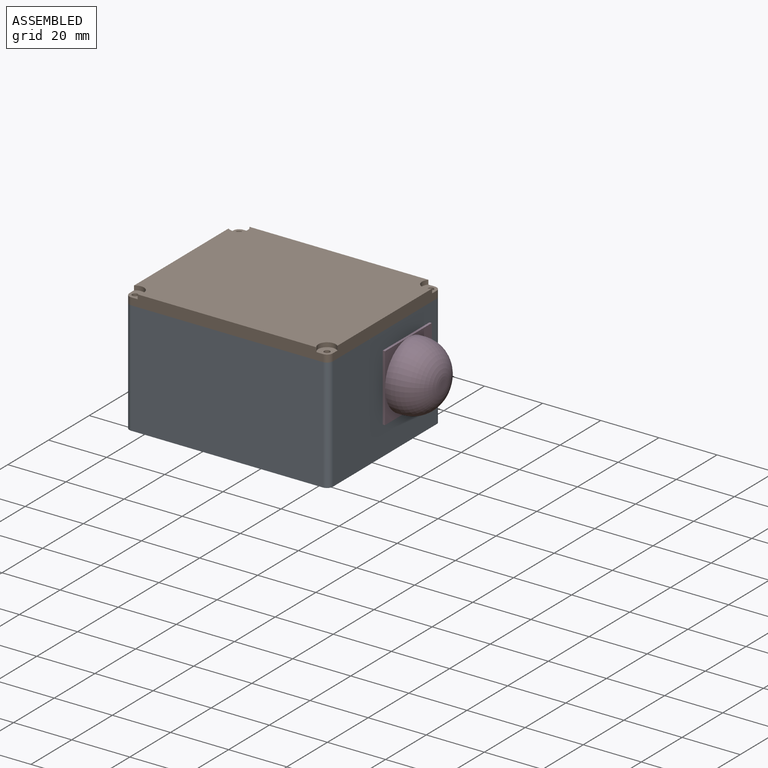
[diagram: assembled view]
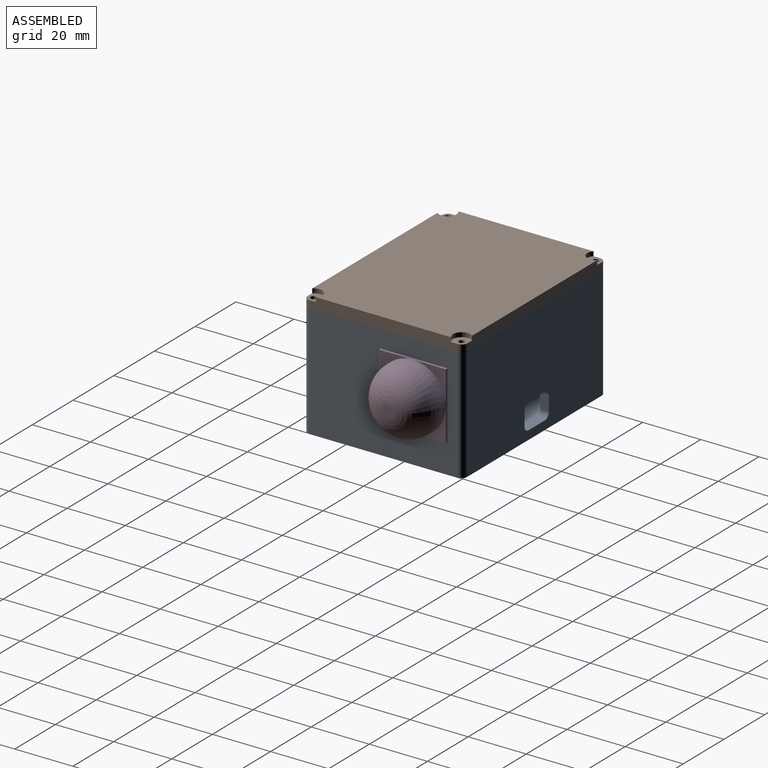
[diagram: assembled view, second angle]
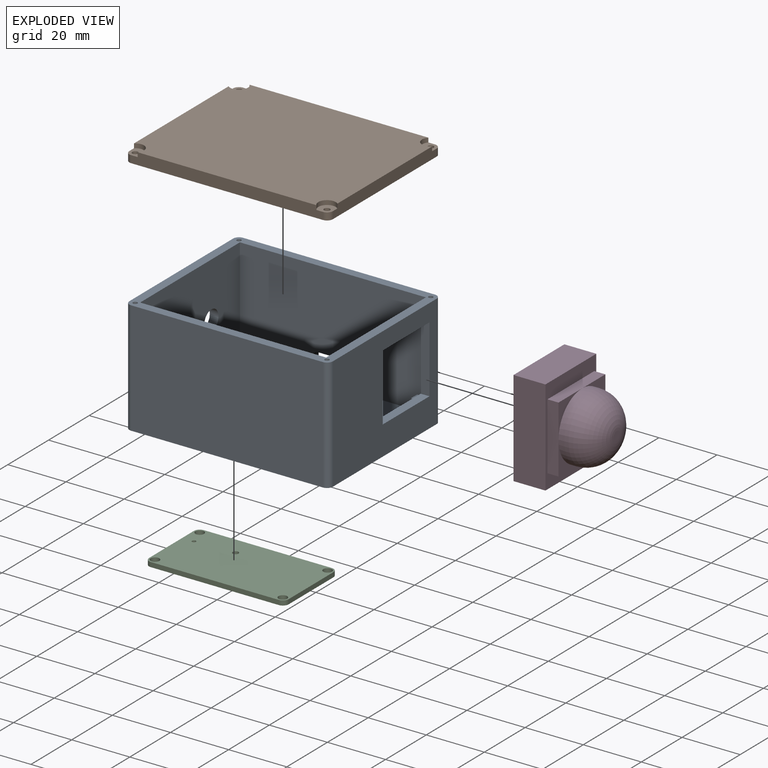
[diagram: exploded view]
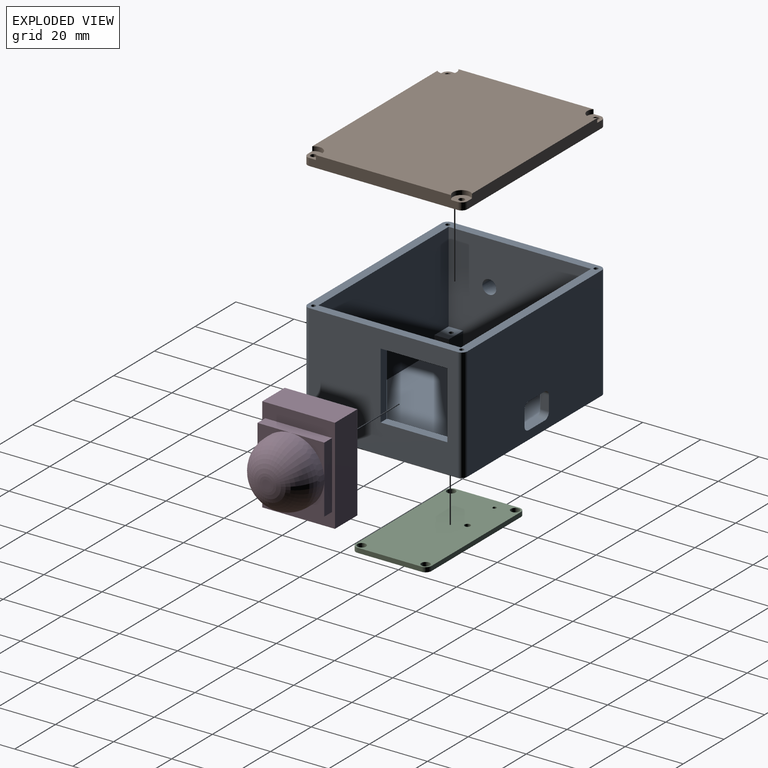
[diagram: exploded view, second angle]
ASSEMBLY  parts=4 mates=3
PART A: 56 faces, bbox 73x55x39 mm
  f0: plane 49x36mm, normal (-1,0,0), area 1190mm2, adj f4,f5,f6,f7,f12,f13,f14,f16
  f1: plane 51x39mm, normal (1,0,0), area 1460mm2, adj f7,f10,f38,f39,f48,f49,f50,f51
  f2: plane 66x39mm, normal (0,1,0), area 2469.4mm2, adj f6,f7,f10,f29,f30,f31,f32,f33
  f3: plane 49x36mm, normal (1,0,0), area 1657.4mm2, adj f4,f5,f6,f7,f17,f19,f20,f22
  f4: plane 64x36mm, normal (0,-1,0), area 2149.4mm2, adj f0,f3,f6,f7,f11,f13,f21,f22
  f5: plane 64x36mm, normal (0,1,0), area 2239mm2, adj f0,f3,f6,f7,f15,f16,f18,f19
  f6: plane 64x52mm, normal (0,0,1), area 3045mm2, adj f0,f2,f3,f4,f5,f11,f12,f14
  f7: plane 70x55mm, normal (0,0,1), area 703.5mm2, adj f0,f1,f2,f3,f4,f5,f8,f9
  f8: plane 51x39mm, normal (-1,0,0), area 1912mm2, adj f7,f10,f36,f37,f52,f53
  f9: plane 66x39mm, normal (0,-1,0), area 2574mm2, adj f7,f10,f37,f38
  f10: plane 70x55mm, normal (0,0,-1), area 3846.6mm2, adj f1,f2,f8,f9,f36,f37,f38,f39
  f11: plane 5x3mm, normal (-1,0,0), area 15mm2, adj f4,f6,f12,f13
  f12: plane 5x3mm, normal (0,-1,0), area 15mm2, adj f0,f6,f11,f13
  f13: plane 3x3mm, normal (0,0,1), area 9mm2, adj f0,f4,f11,f12
  f14: plane 6x5mm, normal (0,1,0), area 30mm2, adj f0,f6,f15,f16
  f15: plane 6x5mm, normal (-1,0,0), area 30mm2, adj f5,f6,f14,f16
  f16: plane 6x6mm, normal (0,0,1), area 34.2mm2, adj f0,f5,f14,f15,f27
  f17: plane 7x5mm, normal (0,1,0), area 35mm2, adj f3,f6,f18,f19
  f18: plane 5x5mm, normal (1,0,0), area 25mm2, adj f5,f6,f17,f19
  f19: plane 7x5mm, normal (0,0,1), area 33.2mm2, adj f3,f5,f17,f18,f25
  f20: plane 7x5mm, normal (0,-1,0), area 35mm2, adj f3,f6,f21,f22
  f21: plane 5x5mm, normal (1,0,0), area 25mm2, adj f4,f6,f20,f22
  f22: plane 7x5mm, normal (0,0,1), area 33.2mm2, adj f3,f4,f20,f21,f23
  f23: cylinder r=0.75mm len=5mm, axis (0,0,1), area 23.6mm2, adj f22,f24
  f24: plane 1.5x1.5mm, normal (0,0,1), area 1.8mm2, adj f23
  f25: cylinder r=0.75mm len=5mm, axis (0,0,1), area 23.6mm2, adj f19,f26
  f26: plane 1.5x1.5mm, normal (0,0,1), area 1.8mm2, adj f25
  f27: cylinder r=0.75mm len=5mm, axis (0,0,1), area 23.6mm2, adj f16,f28
  f28: plane 1.5x1.5mm, normal (0,0,1), area 1.8mm2, adj f27
  f29: plane 5x3mm, normal (1,0,0), area 15mm2, adj f2,f4,f32,f35
  f30: plane 8x3mm, normal (0,0,-1), area 24mm2, adj f2,f4,f32,f33
  f31: plane 5x3mm, normal (-1,0,0), area 15mm2, adj f2,f4,f33,f34
  f32: cylinder r=2mm len=3mm, axis (0,1,0), area 9.4mm2, adj f2,f4,f29,f30
  f33: cylinder r=2mm len=3mm, axis (0,-1,0), area 9.4mm2, adj f2,f4,f30,f31
  f34: cylinder r=2mm len=3mm, axis (0,1,0), area 9.4mm2, adj f2,f4,f6,f31
  f35: cylinder r=2mm len=3mm, axis (0,-1,0), area 9.4mm2, adj f2,f4,f6,f29
  f36: cylinder r=2mm len=39mm, axis (0,0,1), area 122.5mm2, adj f2,f7,f8,f10
  f37: cylinder r=2mm len=39mm, axis (0,0,-1), area 122.5mm2, adj f7,f8,f9,f10
  f38: cylinder r=2mm len=39mm, axis (0,0,1), area 122.5mm2, adj f1,f7,f9,f10
  f39: cylinder r=2mm len=39mm, axis (0,0,-1), area 122.5mm2, adj f1,f2,f7,f10
  f40: cylinder r=0.75mm len=10mm, axis (0,0,1), area 47.1mm2, adj f7,f41
  f41: plane 1.5x1.5mm, normal (0,0,1), area 1.8mm2, adj f40
  f42: cylinder r=0.75mm len=10mm, axis (0,0,1), area 47.1mm2, adj f7,f43
  f43: plane 1.5x1.5mm, normal (0,0,1), area 1.8mm2, adj f42
  f44: cylinder r=0.75mm len=10mm, axis (0,0,1), area 47.1mm2, adj f7,f45
  f45: plane 1.5x1.5mm, normal (0,0,1), area 1.8mm2, adj f44
  f46: cylinder r=0.75mm len=10mm, axis (0,0,1), area 47.1mm2, adj f7,f47
  f47: plane 1.5x1.5mm, normal (0,0,1), area 1.8mm2, adj f46
  f48: plane 23x3mm, normal (0,-1,0), area 69mm2, adj f0,f1,f49,f51
  f49: plane 23x3mm, normal (0,0,-1), area 69mm2, adj f0,f1,f48,f50
  f50: plane 23x3mm, normal (0,1,0), area 69mm2, adj f0,f1,f49,f51
  f51: plane 23x3mm, normal (0,0,1), area 69mm2, adj f0,f1,f48,f50
  f52: cylinder r=3.5mm len=7mm, axis (-1,0,0), area 66mm2, adj f3,f8
  f53: cylinder r=3.5mm len=7mm, axis (1,0,0), area 66mm2, adj f8,f54
  f54: plane 7x7mm, normal (-1,0,0), area 20.4mm2, adj f53,f55
  f55: cylinder r=2.4mm len=6mm, axis (-1,0,0), area 90.5mm2, adj f3,f54
PART B: 22 faces, bbox 70x55x4 mm
  f0: cylinder r=2mm len=2.5mm, axis (0,0,1), area 7.9mm2, adj f4,f5,f9,f17
  f1: cylinder r=2mm len=2.5mm, axis (0,0,-1), area 7.9mm2, adj f5,f6,f9,f15
  f2: cylinder r=2mm len=2.5mm, axis (0,0,1), area 7.9mm2, adj f6,f7,f9,f13
  f3: cylinder r=2mm len=2.5mm, axis (0,0,-1), area 7.9mm2, adj f4,f7,f9,f11
  f4: plane 66x4mm, normal (0,1,0), area 257.3mm2, adj f0,f3,f8,f9,f10,f11,f16,f17
  f5: plane 51x4mm, normal (-1,0,0), area 197.3mm2, adj f0,f1,f8,f9,f14,f15,f16,f17
  f6: plane 66x4mm, normal (0,-1,0), area 257.3mm2, adj f1,f2,f8,f9,f12,f13,f14,f15
  f7: plane 51x4mm, normal (1,0,0), area 197.3mm2, adj f2,f3,f8,f9,f10,f11,f12,f13
  f8: plane 70x55mm, normal (0,0,1), area 3761.6mm2, adj f4,f5,f6,f7,f10,f12,f14,f16
  f9: plane 70x55mm, normal (0,0,-1), area 3834mm2, adj f0,f1,f2,f3,f4,f5,f6,f7
  f10: cylinder r=3mm len=5mm, axis (0,0,1), area 13.6mm2, adj f4,f7,f8,f11
  f11: plane 5x5mm, normal (0,0,1), area 18.1mm2, adj f3,f4,f7,f10,f21
  f12: cylinder r=3mm len=5mm, axis (0,0,1), area 13.6mm2, adj f6,f7,f8,f13
  f13: plane 5x5mm, normal (0,0,1), area 18.1mm2, adj f2,f6,f7,f12,f20
  f14: cylinder r=3mm len=5mm, axis (0,0,1), area 13.6mm2, adj f5,f6,f8,f15
  f15: plane 5x5mm, normal (0,0,1), area 18.1mm2, adj f1,f5,f6,f14,f19
  f16: cylinder r=3mm len=5mm, axis (0,0,1), area 13.6mm2, adj f4,f5,f8,f17
  f17: plane 5x5mm, normal (0,0,1), area 18.1mm2, adj f0,f4,f5,f16,f18
  f18: cylinder r=1mm len=2.5mm, axis (0,0,1), area 15.7mm2, adj f9,f17
  f19: cylinder r=1mm len=2.5mm, axis (0,0,1), area 15.7mm2, adj f9,f15
  f20: cylinder r=1mm len=2.5mm, axis (0,0,1), area 15.7mm2, adj f9,f13
  f21: cylinder r=1mm len=2.5mm, axis (0,0,1), area 15.7mm2, adj f9,f11
PART C: 16 faces, bbox 48x26x1.6 mm
  f0: plane 44x1.6mm, normal (0,1,0), area 70.4mm2, adj f4,f5,f12,f15
  f1: plane 22x1.6mm, normal (-1,0,0), area 35.2mm2, adj f4,f5,f12,f13
  f2: plane 44x1.6mm, normal (0,-1,0), area 70.4mm2, adj f4,f5,f13,f14
  f3: plane 22x1.6mm, normal (1,0,0), area 35.2mm2, adj f4,f5,f14,f15
  f4: plane 48x26mm, normal (0,0,1), area 1211.8mm2, adj f0,f1,f2,f3,f6,f7,f8,f9
  f5: plane 48x26mm, normal (0,0,-1), area 1211.8mm2, adj f0,f1,f2,f3,f6,f7,f8,f9
  f6: cylinder r=1.5mm len=3mm, axis (0,0,1), area 15.1mm2, adj f4,f5
  f7: cylinder r=1mm len=2mm, axis (0,0,1), area 10.1mm2, adj f4,f5
  f8: cylinder r=1.5mm len=3mm, axis (0,0,1), area 15.1mm2, adj f4,f5
  f9: cylinder r=1.5mm len=3mm, axis (0,0,1), area 15.1mm2, adj f4,f5
  f10: cylinder r=1.5mm len=3mm, axis (0,0,1), area 15.1mm2, adj f4,f5
  f11: cylinder r=0.65mm len=1.6mm, axis (0,0,1), area 6.5mm2, adj f4,f5
  f12: cylinder r=2mm len=2mm, axis (0,0,1), area 5mm2, adj f0,f1,f4,f5
  f13: cylinder r=2mm len=2mm, axis (0,0,-1), area 5mm2, adj f1,f2,f4,f5
  f14: cylinder r=2mm len=2mm, axis (0,0,1), area 5mm2, adj f2,f3,f4,f5
  f15: cylinder r=2mm len=2mm, axis (0,0,-1), area 5mm2, adj f0,f3,f4,f5
PART D: 17 faces, bbox 26.8x33x25 mm
  f0: plane 11.5x11.5mm, normal (1,0,0), area 28.4mm2, adj f11,f12,f14
  f1: plane 11.5x11.5mm, normal (1,0,0), area 28.4mm2, adj f9,f12,f14
  f2: plane 11.5x11.5mm, normal (1,0,0), area 28.4mm2, adj f9,f10,f14
  f3: plane 33x25mm, normal (1,0,0), area 296mm2, adj f4,f5,f6,f7,f9,f10,f11,f12
  f4: plane 25x11mm, normal (0,1,0), area 275mm2, adj f3,f5,f7,f8
  f5: plane 33x11mm, normal (0,0,1), area 363mm2, adj f3,f4,f6,f8
  f6: plane 25x11mm, normal (0,-1,0), area 275mm2, adj f3,f5,f7,f8
  f7: plane 33x11mm, normal (0,0,-1), area 363mm2, adj f3,f4,f6,f8
  f8: plane 33x25mm, normal (-1,0,0), area 825mm2, adj f4,f5,f6,f7
  f9: plane 23x3.8mm, normal (0,0,1), area 87.4mm2, adj f1,f2,f3,f10,f12
  f10: plane 23x3.8mm, normal (0,-1,0), area 87.4mm2, adj f2,f3,f9,f11,f13
  f11: plane 23x3.8mm, normal (0,0,-1), area 87.4mm2, adj f0,f3,f10,f12,f13
  f12: plane 23x3.8mm, normal (0,1,0), area 87.4mm2, adj f0,f1,f3,f9,f11
  f13: plane 11.5x11.5mm, normal (1,0,0), area 28.4mm2, adj f10,f11,f14
  f14: cylinder r=11.5mm len=23mm, axis (-1,0,0), area 144.5mm2, adj f0,f1,f2,f13,f16
  f15: plane 3x3mm, normal (1,0,0), area 7.1mm2, adj f16
  f16: torus R=1.5mm, axis (1,0,0), area 776.4mm2, adj f14,f15
PLACE A t=(14.51,-5.74,-27.05)mm
PLACE B t=(18.32,8.19,11.95)mm
PLACE C rot(axis=(0,1,0),180deg) t=(-1.19,-33.68,-17.45)mm
PLACE D rot(axis=(-1,0,0),90deg) t=(24.32,1.33,4.22)mm
MATE fastened D.f3 <-> A.f0  axis (1,0,0) through (35.32,9.69,5.95)mm
MATE fastened B.f1 <-> A.f37  axis (0,0,1) through (-29.68,-37.81,11.95)mm
MATE fastened C.f8 <-> A.f25  axis (0,0,-1) through (-25.68,-33.81,-19.05)mm
